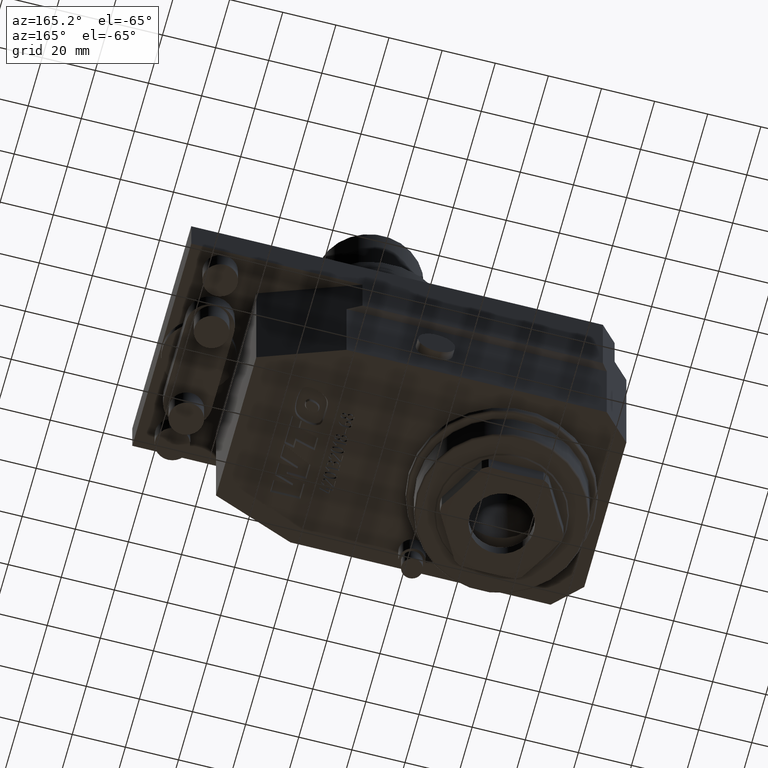
[diagram: clean part render]
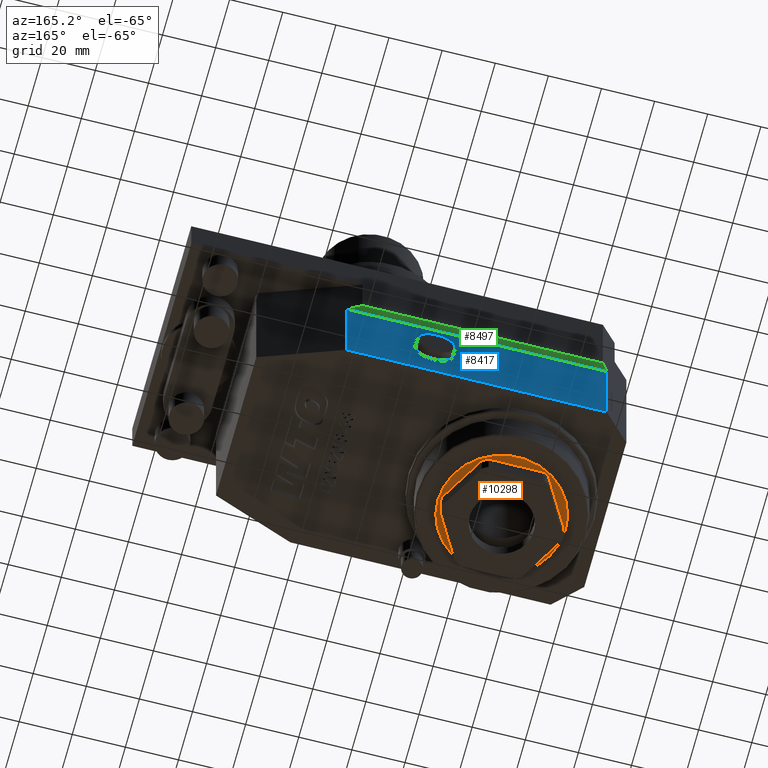
[diagram: same view with three faces highlighted in distinct colors, each labeled with its STEP entity id]
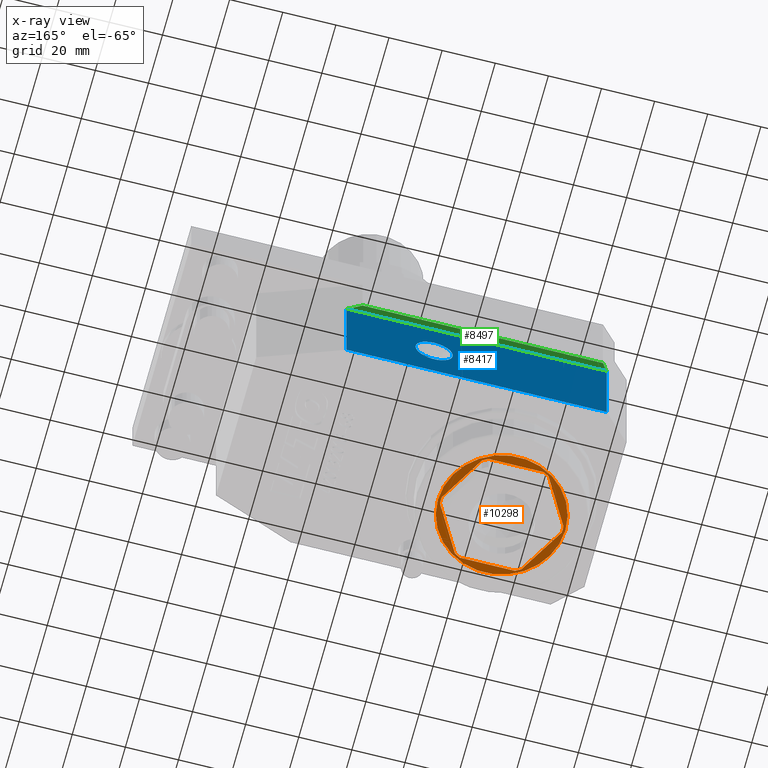
[diagram: x-ray of the same camera — body ghosted, the three highlighted faces saturated]
A machine part, auxiliary view with three faces highlighted in distinct colors.
The next image is the same camera in x-ray (body ghosted, the three faces saturated) — at least one of them is partly hidden behind the body in this view.
Their STEP definitions:

[orange] entity #10298 — the highlighted planar face has unit normal (0, 0, 1).
#5152 = VERTEX_POINT('',#5153);
#5153 = CARTESIAN_POINT('',(-27.06805000476,1.280697491627,-91.5));
#5162 = CYLINDRICAL_SURFACE('',#5163,22.967684181235);
#5163 = AXIS2_PLACEMENT_3D('',#5164,#5165,#5166);
#5164 = CARTESIAN_POINT('',(-50.,0.E+000,-70.));
#5165 = DIRECTION('',(0.E+000,0.E+000,-1.));
#5166 = DIRECTION('',(-1.,0.E+000,0.E+000));
#5173 = PLANE('',#5174);
#5174 = AXIS2_PLACEMENT_3D('',#5175,#5176,#5177);
#5175 = CARTESIAN_POINT('',(-27.03231581876,1.218804065906,-91.5));
#5176 = DIRECTION('',(0.866025403784,0.5,0.E+000));
#5177 = DIRECTION('',(-0.5,0.866025403784,0.E+000));
#5185 = EDGE_CURVE('',#5152,#5186,#5188,.T.);
#5186 = VERTEX_POINT('',#5187);
#5187 = CARTESIAN_POINT('',(-27.06805000476,-1.280697491627,-91.5));
#5188 = SURFACE_CURVE('',#5189,(#5194,#5200),.PCURVE_S1.);
#5189 = CIRCLE('',#5190,22.967684181235);
#5190 = AXIS2_PLACEMENT_3D('',#5191,#5192,#5193);
#5191 = CARTESIAN_POINT('',(-50.,0.E+000,-91.5));
#5192 = DIRECTION('',(0.E+000,0.E+000,-1.));
#5193 = DIRECTION('',(-1.,0.E+000,0.E+000));
#5194 = PCURVE('',#5162,#5195);
#5195 = DEFINITIONAL_REPRESENTATION('',(#5196),#5199);
#5196 = B_SPLINE_CURVE_WITH_KNOTS('',1,(#5197,#5198),.UNSPECIFIED.,.F.,
  .F.,(2,2),(3.085802871537,3.197382435643),.PIECEWISE_BEZIER_KNOTS.);
#5197 = CARTESIAN_POINT('',(3.085802871537,21.5));
#5198 = CARTESIAN_POINT('',(3.197382435643,21.5));
#5199 = ( GEOMETRIC_REPRESENTATION_CONTEXT(2) 
PARAMETRIC_REPRESENTATION_CONTEXT() REPRESENTATION_CONTEXT('2D SPACE',''
  ) );
#5200 = PCURVE('',#5201,#5206);
#5201 = PLANE('',#5202);
#5202 = AXIS2_PLACEMENT_3D('',#5203,#5204,#5205);
#5203 = CARTESIAN_POINT('',(-74.,0.E+000,-91.5));
#5204 = DIRECTION('',(0.E+000,0.E+000,1.));
#5205 = DIRECTION('',(1.,0.E+000,-0.E+000));
#5206 = DEFINITIONAL_REPRESENTATION('',(#5207),#5215);
#5207 = ( BOUNDED_CURVE() B_SPLINE_CURVE(2,(#5208,#5209,#5210,#5211,
#5212,#5213,#5214),.UNSPECIFIED.,.F.,.F.) B_SPLINE_CURVE_WITH_KNOTS((1,2
    ,2,2,2,1),(-2.094395102393,0.E+000,2.094395102393,4.188790204786,
6.28318530718,8.377580409573),.UNSPECIFIED.) CURVE() 
GEOMETRIC_REPRESENTATION_ITEM() RATIONAL_B_SPLINE_CURVE((1.,0.5,1.,0.5,
1.,0.5,1.)) REPRESENTATION_ITEM('') );
#5208 = CARTESIAN_POINT('',(1.032315818765,0.E+000));
#5209 = CARTESIAN_POINT('',(1.032315818765,39.781195934094));
#5210 = CARTESIAN_POINT('',(35.483842090617,19.890597967047));
#5211 = CARTESIAN_POINT('',(69.935368362469,5.625460183275E-015));
#5212 = CARTESIAN_POINT('',(35.483842090617,-19.89059796704));
#5213 = CARTESIAN_POINT('',(1.032315818765,-39.78119593409));
#5214 = CARTESIAN_POINT('',(1.032315818765,0.E+000));
#5215 = ( GEOMETRIC_REPRESENTATION_CONTEXT(2) 
PARAMETRIC_REPRESENTATION_CONTEXT() REPRESENTATION_CONTEXT('2D SPACE',''
  ) );
#5232 = PLANE('',#5233);
#5233 = AXIS2_PLACEMENT_3D('',#5234,#5235,#5236);
#5234 = CARTESIAN_POINT('',(-37.46064262607,-19.28119593409,-91.5));
#5235 = DIRECTION('',(0.866025403784,-0.5,0.E+000));
#5236 = DIRECTION('',(0.5,0.866025403784,0.E+000));
#5296 = VERTEX_POINT('',#5297);
#5297 = CARTESIAN_POINT('',(-37.42490844007,19.219302508373,-91.5));
#5306 = CYLINDRICAL_SURFACE('',#5307,22.967684181235);
#5307 = AXIS2_PLACEMENT_3D('',#5308,#5309,#5310);
#5308 = CARTESIAN_POINT('',(-50.,0.E+000,-70.));
#5309 = DIRECTION('',(0.E+000,0.E+000,-1.));
#5310 = DIRECTION('',(-1.,0.E+000,0.E+000));
#5370 = VERTEX_POINT('',#5371);
#5371 = CARTESIAN_POINT('',(-39.64314156469,20.5,-91.5));
#5384 = PLANE('',#5385);
#5385 = AXIS2_PLACEMENT_3D('',#5386,#5387,#5388);
#5386 = CARTESIAN_POINT('',(-39.57167319269,20.5,-91.5));
#5387 = DIRECTION('',(3.326944979824E-016,1.,0.E+000));
#5388 = DIRECTION('',(-1.,3.326944979824E-016,0.E+000));
#5396 = EDGE_CURVE('',#5370,#5296,#5397,.T.);
#5397 = SURFACE_CURVE('',#5398,(#5403,#5409),.PCURVE_S1.);
#5398 = CIRCLE('',#5399,22.967684181235);
#5399 = AXIS2_PLACEMENT_3D('',#5400,#5401,#5402);
#5400 = CARTESIAN_POINT('',(-50.,0.E+000,-91.5));
#5401 = DIRECTION('',(0.E+000,0.E+000,-1.));
#5402 = DIRECTION('',(-1.,0.E+000,0.E+000));
#5403 = PCURVE('',#5306,#5404);
#5404 = DEFINITIONAL_REPRESENTATION('',(#5405),#5408);
#5405 = B_SPLINE_CURVE_WITH_KNOTS('',1,(#5406,#5407),.UNSPECIFIED.,.F.,
  .F.,(2,2),(2.03860532034,2.150184884446),.PIECEWISE_BEZIER_KNOTS.);
#5406 = CARTESIAN_POINT('',(2.03860532034,21.5));
#5407 = CARTESIAN_POINT('',(2.150184884446,21.5));
#5408 = ( GEOMETRIC_REPRESENTATION_CONTEXT(2) 
PARAMETRIC_REPRESENTATION_CONTEXT() REPRESENTATION_CONTEXT('2D SPACE',''
  ) );
#5409 = PCURVE('',#5201,#5410);
#5410 = DEFINITIONAL_REPRESENTATION('',(#5411),#5419);
#5411 = ( BOUNDED_CURVE() B_SPLINE_CURVE(2,(#5412,#5413,#5414,#5415,
#5416,#5417,#5418),.UNSPECIFIED.,.F.,.F.) B_SPLINE_CURVE_WITH_KNOTS((1,2
    ,2,2,2,1),(-2.094395102393,0.E+000,2.094395102393,4.188790204786,
6.28318530718,8.377580409573),.UNSPECIFIED.) CURVE() 
GEOMETRIC_REPRESENTATION_ITEM() RATIONAL_B_SPLINE_CURVE((1.,0.5,1.,0.5,
1.,0.5,1.)) REPRESENTATION_ITEM('') );
#5412 = CARTESIAN_POINT('',(1.032315818765,0.E+000));
#5413 = CARTESIAN_POINT('',(1.032315818765,39.781195934094));
#5414 = CARTESIAN_POINT('',(35.483842090617,19.890597967047));
#5415 = CARTESIAN_POINT('',(69.935368362469,5.625460183275E-015));
#5416 = CARTESIAN_POINT('',(35.483842090617,-19.89059796704));
#5417 = CARTESIAN_POINT('',(1.032315818765,-39.78119593409));
#5418 = CARTESIAN_POINT('',(1.032315818765,0.E+000));
#5419 = ( GEOMETRIC_REPRESENTATION_CONTEXT(2) 
PARAMETRIC_REPRESENTATION_CONTEXT() REPRESENTATION_CONTEXT('2D SPACE',''
  ) );
#5425 = VERTEX_POINT('',#5426);
#5426 = CARTESIAN_POINT('',(-60.3568584353,20.5,-91.5));
#5435 = CYLINDRICAL_SURFACE('',#5436,22.967684181235);
#5436 = AXIS2_PLACEMENT_3D('',#5437,#5438,#5439);
#5437 = CARTESIAN_POINT('',(-50.,0.E+000,-70.));
#5438 = DIRECTION('',(0.E+000,0.E+000,-1.));
#5439 = DIRECTION('',(-1.,0.E+000,0.E+000));
#5499 = VERTEX_POINT('',#5500);
#5500 = CARTESIAN_POINT('',(-62.57509155992,19.219302508373,-91.5));
#5513 = PLANE('',#5514);
#5514 = AXIS2_PLACEMENT_3D('',#5515,#5516,#5517);
#5515 = CARTESIAN_POINT('',(-62.53935737392,19.281195934094,-91.5));
#5516 = DIRECTION('',(-0.866025403784,0.5,0.E+000));
#5517 = DIRECTION('',(-0.5,-0.866025403784,0.E+000));
#5525 = EDGE_CURVE('',#5499,#5425,#5526,.T.);
#5526 = SURFACE_CURVE('',#5527,(#5532,#5538),.PCURVE_S1.);
#5527 = CIRCLE('',#5528,22.967684181235);
#5528 = AXIS2_PLACEMENT_3D('',#5529,#5530,#5531);
#5529 = CARTESIAN_POINT('',(-50.,0.E+000,-91.5));
#5530 = DIRECTION('',(0.E+000,0.E+000,-1.));
#5531 = DIRECTION('',(-1.,0.E+000,0.E+000));
#5532 = PCURVE('',#5435,#5533);
#5533 = DEFINITIONAL_REPRESENTATION('',(#5534),#5537);
#5534 = B_SPLINE_CURVE_WITH_KNOTS('',1,(#5535,#5536),.UNSPECIFIED.,.F.,
  .F.,(2,2),(0.991407769144,1.102987333249),.PIECEWISE_BEZIER_KNOTS.);
#5535 = CARTESIAN_POINT('',(0.991407769144,21.5));
#5536 = CARTESIAN_POINT('',(1.102987333249,21.5));
#5537 = ( GEOMETRIC_REPRESENTATION_CONTEXT(2) 
PARAMETRIC_REPRESENTATION_CONTEXT() REPRESENTATION_CONTEXT('2D SPACE',''
  ) );
#5538 = PCURVE('',#5201,#5539);
#5539 = DEFINITIONAL_REPRESENTATION('',(#5540),#5548);
#5540 = ( BOUNDED_CURVE() B_SPLINE_CURVE(2,(#5541,#5542,#5543,#5544,
#5545,#5546,#5547),.UNSPECIFIED.,.F.,.F.) B_SPLINE_CURVE_WITH_KNOTS((1,2
    ,2,2,2,1),(-2.094395102393,0.E+000,2.094395102393,4.188790204786,
6.28318530718,8.377580409573),.UNSPECIFIED.) CURVE() 
GEOMETRIC_REPRESENTATION_ITEM() RATIONAL_B_SPLINE_CURVE((1.,0.5,1.,0.5,
1.,0.5,1.)) REPRESENTATION_ITEM('') );
#5541 = CARTESIAN_POINT('',(1.032315818765,0.E+000));
#5542 = CARTESIAN_POINT('',(1.032315818765,39.781195934094));
#5543 = CARTESIAN_POINT('',(35.483842090617,19.890597967047));
#5544 = CARTESIAN_POINT('',(69.935368362469,5.625460183275E-015));
#5545 = CARTESIAN_POINT('',(35.483842090617,-19.89059796704));
#5546 = CARTESIAN_POINT('',(1.032315818765,-39.78119593409));
#5547 = CARTESIAN_POINT('',(1.032315818765,0.E+000));
#5548 = ( GEOMETRIC_REPRESENTATION_CONTEXT(2) 
PARAMETRIC_REPRESENTATION_CONTEXT() REPRESENTATION_CONTEXT('2D SPACE',''
  ) );
#5554 = VERTEX_POINT('',#5555);
#5555 = CARTESIAN_POINT('',(-72.93194999523,1.280697491627,-91.5));
#5564 = CYLINDRICAL_SURFACE('',#5565,22.967684181235);
#5565 = AXIS2_PLACEMENT_3D('',#5566,#5567,#5568);
#5566 = CARTESIAN_POINT('',(-50.,0.E+000,-70.));
#5567 = DIRECTION('',(0.E+000,0.E+000,-1.));
#5568 = DIRECTION('',(-1.,0.E+000,0.E+000));
#5628 = VERTEX_POINT('',#5629);
#5629 = CARTESIAN_POINT('',(-72.93194999523,-1.280697491627,-91.5));
#5642 = PLANE('',#5643);
#5643 = AXIS2_PLACEMENT_3D('',#5644,#5645,#5646);
#5644 = CARTESIAN_POINT('',(-72.96768418123,-1.218804065906,-91.5));
#5645 = DIRECTION('',(-0.866025403784,-0.5,0.E+000));
#5646 = DIRECTION('',(0.5,-0.866025403784,0.E+000));
#5654 = EDGE_CURVE('',#5628,#5554,#5655,.T.);
#5655 = SURFACE_CURVE('',#5656,(#5661,#5667),.PCURVE_S1.);
#5656 = CIRCLE('',#5657,22.967684181235);
#5657 = AXIS2_PLACEMENT_3D('',#5658,#5659,#5660);
#5658 = CARTESIAN_POINT('',(-50.,0.E+000,-91.5));
#5659 = DIRECTION('',(0.E+000,0.E+000,-1.));
#5660 = DIRECTION('',(-1.,0.E+000,0.E+000));
#5661 = PCURVE('',#5564,#5662);
#5662 = DEFINITIONAL_REPRESENTATION('',(#5663),#5666);
#5663 = B_SPLINE_CURVE_WITH_KNOTS('',1,(#5664,#5665),.UNSPECIFIED.,.F.,
  .F.,(2,2),(6.227395525127,6.338975089232),.PIECEWISE_BEZIER_KNOTS.);
#5664 = CARTESIAN_POINT('',(6.227395525127,21.5));
#5665 = CARTESIAN_POINT('',(6.338975089232,21.5));
#5666 = ( GEOMETRIC_REPRESENTATION_CONTEXT(2) 
PARAMETRIC_REPRESENTATION_CONTEXT() REPRESENTATION_CONTEXT('2D SPACE',''
  ) );
#5667 = PCURVE('',#5201,#5668);
#5668 = DEFINITIONAL_REPRESENTATION('',(#5669),#5677);
#5669 = ( BOUNDED_CURVE() B_SPLINE_CURVE(2,(#5670,#5671,#5672,#5673,
#5674,#5675,#5676),.UNSPECIFIED.,.F.,.F.) B_SPLINE_CURVE_WITH_KNOTS((1,2
    ,2,2,2,1),(-2.094395102393,0.E+000,2.094395102393,4.188790204786,
6.28318530718,8.377580409573),.UNSPECIFIED.) CURVE() 
GEOMETRIC_REPRESENTATION_ITEM() RATIONAL_B_SPLINE_CURVE((1.,0.5,1.,0.5,
1.,0.5,1.)) REPRESENTATION_ITEM('') );
#5670 = CARTESIAN_POINT('',(1.032315818765,0.E+000));
#5671 = CARTESIAN_POINT('',(1.032315818765,39.781195934094));
#5672 = CARTESIAN_POINT('',(35.483842090617,19.890597967047));
#5673 = CARTESIAN_POINT('',(69.935368362469,5.625460183275E-015));
#5674 = CARTESIAN_POINT('',(35.483842090617,-19.89059796704));
#5675 = CARTESIAN_POINT('',(1.032315818765,-39.78119593409));
#5676 = CARTESIAN_POINT('',(1.032315818765,0.E+000));
#5677 = ( GEOMETRIC_REPRESENTATION_CONTEXT(2) 
PARAMETRIC_REPRESENTATION_CONTEXT() REPRESENTATION_CONTEXT('2D SPACE',''
  ) );
#5683 = VERTEX_POINT('',#5684);
#5684 = CARTESIAN_POINT('',(-62.57509155992,-19.21930250837,-91.5));
#5693 = CYLINDRICAL_SURFACE('',#5694,22.967684181235);
#5694 = AXIS2_PLACEMENT_3D('',#5695,#5696,#5697);
#5695 = CARTESIAN_POINT('',(-50.,0.E+000,-70.));
#5696 = DIRECTION('',(0.E+000,0.E+000,-1.));
#5697 = DIRECTION('',(-1.,0.E+000,0.E+000));
#5757 = VERTEX_POINT('',#5758);
#5758 = CARTESIAN_POINT('',(-60.3568584353,-20.5,-91.5));
#5771 = PLANE('',#5772);
#5772 = AXIS2_PLACEMENT_3D('',#5773,#5774,#5775);
#5773 = CARTESIAN_POINT('',(-60.4283268073,-20.5,-91.5));
#5774 = DIRECTION('',(0.E+000,-1.,0.E+000));
#5775 = DIRECTION('',(0.E+000,0.E+000,-1.));
#5783 = EDGE_CURVE('',#5757,#5683,#5784,.T.);
#5784 = SURFACE_CURVE('',#5785,(#5790,#5796),.PCURVE_S1.);
#5785 = CIRCLE('',#5786,22.967684181235);
#5786 = AXIS2_PLACEMENT_3D('',#5787,#5788,#5789);
#5787 = CARTESIAN_POINT('',(-50.,0.E+000,-91.5));
#5788 = DIRECTION('',(0.E+000,0.E+000,-1.));
#5789 = DIRECTION('',(-1.,0.E+000,0.E+000));
#5790 = PCURVE('',#5693,#5791);
#5791 = DEFINITIONAL_REPRESENTATION('',(#5792),#5795);
#5792 = B_SPLINE_CURVE_WITH_KNOTS('',1,(#5793,#5794),.UNSPECIFIED.,.F.,
  .F.,(2,2),(5.18019797393,5.291777538036),.PIECEWISE_BEZIER_KNOTS.);
#5793 = CARTESIAN_POINT('',(5.18019797393,21.5));
#5794 = CARTESIAN_POINT('',(5.291777538036,21.5));
#5795 = ( GEOMETRIC_REPRESENTATION_CONTEXT(2) 
PARAMETRIC_REPRESENTATION_CONTEXT() REPRESENTATION_CONTEXT('2D SPACE',''
  ) );
#5796 = PCURVE('',#5201,#5797);
#5797 = DEFINITIONAL_REPRESENTATION('',(#5798),#5806);
#5798 = ( BOUNDED_CURVE() B_SPLINE_CURVE(2,(#5799,#5800,#5801,#5802,
#5803,#5804,#5805),.UNSPECIFIED.,.F.,.F.) B_SPLINE_CURVE_WITH_KNOTS((1,2
    ,2,2,2,1),(-2.094395102393,0.E+000,2.094395102393,4.188790204786,
6.28318530718,8.377580409573),.UNSPECIFIED.) CURVE() 
GEOMETRIC_REPRESENTATION_ITEM() RATIONAL_B_SPLINE_CURVE((1.,0.5,1.,0.5,
1.,0.5,1.)) REPRESENTATION_ITEM('') );
#5799 = CARTESIAN_POINT('',(1.032315818765,0.E+000));
#5800 = CARTESIAN_POINT('',(1.032315818765,39.781195934094));
#5801 = CARTESIAN_POINT('',(35.483842090617,19.890597967047));
#5802 = CARTESIAN_POINT('',(69.935368362469,5.625460183275E-015));
#5803 = CARTESIAN_POINT('',(35.483842090617,-19.89059796704));
#5804 = CARTESIAN_POINT('',(1.032315818765,-39.78119593409));
#5805 = CARTESIAN_POINT('',(1.032315818765,0.E+000));
#5806 = ( GEOMETRIC_REPRESENTATION_CONTEXT(2) 
PARAMETRIC_REPRESENTATION_CONTEXT() REPRESENTATION_CONTEXT('2D SPACE',''
  ) );
#5812 = VERTEX_POINT('',#5813);
#5813 = CARTESIAN_POINT('',(-39.64314156469,-20.5,-91.5));
#5822 = CYLINDRICAL_SURFACE('',#5823,22.967684181235);
#5823 = AXIS2_PLACEMENT_3D('',#5824,#5825,#5826);
#5824 = CARTESIAN_POINT('',(-50.,0.E+000,-70.));
#5825 = DIRECTION('',(0.E+000,0.E+000,-1.));
#5826 = DIRECTION('',(-1.,0.E+000,0.E+000));
#5886 = VERTEX_POINT('',#5887);
#5887 = CARTESIAN_POINT('',(-37.42490844007,-19.21930250837,-91.5));
#5907 = EDGE_CURVE('',#5886,#5812,#5908,.T.);
#5908 = SURFACE_CURVE('',#5909,(#5914,#5920),.PCURVE_S1.);
#5909 = CIRCLE('',#5910,22.967684181235);
#5910 = AXIS2_PLACEMENT_3D('',#5911,#5912,#5913);
#5911 = CARTESIAN_POINT('',(-50.,0.E+000,-91.5));
#5912 = DIRECTION('',(0.E+000,0.E+000,-1.));
#5913 = DIRECTION('',(-1.,0.E+000,0.E+000));
#5914 = PCURVE('',#5822,#5915);
#5915 = DEFINITIONAL_REPRESENTATION('',(#5916),#5919);
#5916 = B_SPLINE_CURVE_WITH_KNOTS('',1,(#5917,#5918),.UNSPECIFIED.,.F.,
  .F.,(2,2),(4.133000422734,4.244579986839),.PIECEWISE_BEZIER_KNOTS.);
#5917 = CARTESIAN_POINT('',(4.133000422734,21.5));
#5918 = CARTESIAN_POINT('',(4.244579986839,21.5));
#5919 = ( GEOMETRIC_REPRESENTATION_CONTEXT(2) 
PARAMETRIC_REPRESENTATION_CONTEXT() REPRESENTATION_CONTEXT('2D SPACE',''
  ) );
#5920 = PCURVE('',#5201,#5921);
#5921 = DEFINITIONAL_REPRESENTATION('',(#5922),#5930);
#5922 = ( BOUNDED_CURVE() B_SPLINE_CURVE(2,(#5923,#5924,#5925,#5926,
#5927,#5928,#5929),.UNSPECIFIED.,.F.,.F.) B_SPLINE_CURVE_WITH_KNOTS((1,2
    ,2,2,2,1),(-2.094395102393,0.E+000,2.094395102393,4.188790204786,
6.28318530718,8.377580409573),.UNSPECIFIED.) CURVE() 
GEOMETRIC_REPRESENTATION_ITEM() RATIONAL_B_SPLINE_CURVE((1.,0.5,1.,0.5,
1.,0.5,1.)) REPRESENTATION_ITEM('') );
#5923 = CARTESIAN_POINT('',(1.032315818765,0.E+000));
#5924 = CARTESIAN_POINT('',(1.032315818765,39.781195934094));
#5925 = CARTESIAN_POINT('',(35.483842090617,19.890597967047));
#5926 = CARTESIAN_POINT('',(69.935368362469,5.625460183275E-015));
#5927 = CARTESIAN_POINT('',(35.483842090617,-19.89059796704));
#5928 = CARTESIAN_POINT('',(1.032315818765,-39.78119593409));
#5929 = CARTESIAN_POINT('',(1.032315818765,0.E+000));
#5930 = ( GEOMETRIC_REPRESENTATION_CONTEXT(2) 
PARAMETRIC_REPRESENTATION_CONTEXT() REPRESENTATION_CONTEXT('2D SPACE',''
  ) );
#10187 = CONICAL_SURFACE('',#10188,24.5,0.785398163397);
#10188 = AXIS2_PLACEMENT_3D('',#10189,#10190,#10191);
#10189 = CARTESIAN_POINT('',(-50.,0.E+000,-91.));
#10190 = DIRECTION('',(0.E+000,0.E+000,1.));
#10191 = DIRECTION('',(1.,0.E+000,-0.E+000));
#10227 = EDGE_CURVE('',#10228,#10228,#10230,.T.);
#10228 = VERTEX_POINT('',#10229);
#10229 = CARTESIAN_POINT('',(-74.,0.E+000,-91.5));
#10230 = SURFACE_CURVE('',#10231,(#10236,#10265),.PCURVE_S1.);
#10231 = CIRCLE('',#10232,24.);
#10232 = AXIS2_PLACEMENT_3D('',#10233,#10234,#10235);
#10233 = CARTESIAN_POINT('',(-50.,0.E+000,-91.5));
#10234 = DIRECTION('',(0.E+000,0.E+000,-1.));
#10235 = DIRECTION('',(-1.,0.E+000,0.E+000));
#10236 = PCURVE('',#10187,#10237);
#10237 = DEFINITIONAL_REPRESENTATION('',(#10238),#10264);
#10238 = B_SPLINE_CURVE_WITH_KNOTS('',3,(#10239,#10240,#10241,#10242,
    #10243,#10244,#10245,#10246,#10247,#10248,#10249,#10250,#10251,
    #10252,#10253,#10254,#10255,#10256,#10257,#10258,#10259,#10260,
    #10261,#10262,#10263),.UNSPECIFIED.,.F.,.F.,(4,1,1,1,1,1,1,1,1,1,1,1
    ,1,1,1,1,1,1,1,1,1,1,4),(0.E+000,0.285599332145,0.571198664289,
    0.856797996434,1.142397328578,1.427996660723,1.713595992867,
    1.999195325012,2.284794657156,2.570393989301,2.855993321445,
    3.14159265359,3.427191985734,3.712791317879,3.998390650023,
    4.283989982168,4.569589314312,4.855188646457,5.140787978601,
    5.426387310746,5.711986642891,5.997585975035,6.28318530718),
  .QUASI_UNIFORM_KNOTS.);
#10239 = CARTESIAN_POINT('',(9.424777960769,-0.5));
#10240 = CARTESIAN_POINT('',(9.329578183388,-0.5));
#10241 = CARTESIAN_POINT('',(9.139178628625,-0.5));
#10242 = CARTESIAN_POINT('',(8.85357929648,-0.5));
#10243 = CARTESIAN_POINT('',(8.567979964336,-0.5));
#10244 = CARTESIAN_POINT('',(8.282380632191,-0.5));
#10245 = CARTESIAN_POINT('',(7.996781300047,-0.5));
#10246 = CARTESIAN_POINT('',(7.711181967902,-0.5));
#10247 = CARTESIAN_POINT('',(7.425582635758,-0.5));
#10248 = CARTESIAN_POINT('',(7.139983303613,-0.5));
#10249 = CARTESIAN_POINT('',(6.854383971469,-0.5));
#10250 = CARTESIAN_POINT('',(6.568784639324,-0.5));
#10251 = CARTESIAN_POINT('',(6.28318530718,-0.5));
#10252 = CARTESIAN_POINT('',(5.997585975035,-0.5));
#10253 = CARTESIAN_POINT('',(5.711986642891,-0.5));
#10254 = CARTESIAN_POINT('',(5.426387310746,-0.5));
#10255 = CARTESIAN_POINT('',(5.140787978601,-0.5));
#10256 = CARTESIAN_POINT('',(4.855188646457,-0.5));
#10257 = CARTESIAN_POINT('',(4.569589314312,-0.5));
#10258 = CARTESIAN_POINT('',(4.283989982168,-0.5));
#10259 = CARTESIAN_POINT('',(3.998390650023,-0.5));
#10260 = CARTESIAN_POINT('',(3.712791317879,-0.5));
#10261 = CARTESIAN_POINT('',(3.427191985734,-0.5));
#10262 = CARTESIAN_POINT('',(3.236792430971,-0.5));
#10263 = CARTESIAN_POINT('',(3.14159265359,-0.5));
#10264 = ( GEOMETRIC_REPRESENTATION_CONTEXT(2) 
PARAMETRIC_REPRESENTATION_CONTEXT() REPRESENTATION_CONTEXT('2D SPACE',''
  ) );
#10265 = PCURVE('',#5201,#10266);
#10266 = DEFINITIONAL_REPRESENTATION('',(#10267),#10275);
#10267 = ( BOUNDED_CURVE() B_SPLINE_CURVE(2,(#10268,#10269,#10270,#10271
    ,#10272,#10273,#10274),.UNSPECIFIED.,.F.,.F.) 
B_SPLINE_CURVE_WITH_KNOTS((1,2,2,2,2,1),(-2.094395102393,0.E+000,
    2.094395102393,4.188790204786,6.28318530718,8.377580409573),
.UNSPECIFIED.) CURVE() GEOMETRIC_REPRESENTATION_ITEM() 
RATIONAL_B_SPLINE_CURVE((1.,0.5,1.,0.5,1.,0.5,1.)) REPRESENTATION_ITEM(
  '') );
#10268 = CARTESIAN_POINT('',(0.E+000,0.E+000));
#10269 = CARTESIAN_POINT('',(0.E+000,41.569219381653));
#10270 = CARTESIAN_POINT('',(36.,20.784609690827));
#10271 = CARTESIAN_POINT('',(72.,5.878304635907E-015));
#10272 = CARTESIAN_POINT('',(36.,-20.78460969082));
#10273 = CARTESIAN_POINT('',(3.552713678801E-014,-41.56921938165));
#10274 = CARTESIAN_POINT('',(0.E+000,0.E+000));
#10275 = ( GEOMETRIC_REPRESENTATION_CONTEXT(2) 
PARAMETRIC_REPRESENTATION_CONTEXT() REPRESENTATION_CONTEXT('2D SPACE',''
  ) );
#10298 = ADVANCED_FACE('',(#10299,#10433),#5201,.F.);
#10299 = FACE_BOUND('',#10300,.T.);
#10300 = EDGE_LOOP('',(#10301,#10302,#10323,#10324,#10345,#10346,#10367,
    #10368,#10389,#10390,#10411,#10412));
#10301 = ORIENTED_EDGE('',*,*,#5185,.F.);
#10302 = ORIENTED_EDGE('',*,*,#10303,.F.);
#10303 = EDGE_CURVE('',#5296,#5152,#10304,.T.);
#10304 = SURFACE_CURVE('',#10305,(#10309,#10316),.PCURVE_S1.);
#10305 = LINE('',#10306,#10307);
#10306 = CARTESIAN_POINT('',(-27.03231581876,1.218804065906,-91.5));
#10307 = VECTOR('',#10308,1.);
#10308 = DIRECTION('',(0.5,-0.866025403784,0.E+000));
#10309 = PCURVE('',#5201,#10310);
#10310 = DEFINITIONAL_REPRESENTATION('',(#10311),#10315);
#10311 = LINE('',#10312,#10313);
#10312 = CARTESIAN_POINT('',(46.967684181235,1.218804065906));
#10313 = VECTOR('',#10314,1.);
#10314 = DIRECTION('',(0.5,-0.866025403784));
#10315 = ( GEOMETRIC_REPRESENTATION_CONTEXT(2) 
PARAMETRIC_REPRESENTATION_CONTEXT() REPRESENTATION_CONTEXT('2D SPACE',''
  ) );
#10316 = PCURVE('',#5173,#10317);
#10317 = DEFINITIONAL_REPRESENTATION('',(#10318),#10322);
#10318 = LINE('',#10319,#10320);
#10319 = CARTESIAN_POINT('',(0.E+000,0.E+000));
#10320 = VECTOR('',#10321,1.);
#10321 = DIRECTION('',(-1.,0.E+000));
#10322 = ( GEOMETRIC_REPRESENTATION_CONTEXT(2) 
PARAMETRIC_REPRESENTATION_CONTEXT() REPRESENTATION_CONTEXT('2D SPACE',''
  ) );
#10323 = ORIENTED_EDGE('',*,*,#5396,.F.);
#10324 = ORIENTED_EDGE('',*,*,#10325,.F.);
#10325 = EDGE_CURVE('',#5425,#5370,#10326,.T.);
#10326 = SURFACE_CURVE('',#10327,(#10331,#10338),.PCURVE_S1.);
#10327 = LINE('',#10328,#10329);
#10328 = CARTESIAN_POINT('',(-39.57167319269,20.5,-91.5));
#10329 = VECTOR('',#10330,1.);
#10330 = DIRECTION('',(1.,-3.326944979824E-016,0.E+000));
#10331 = PCURVE('',#5201,#10332);
#10332 = DEFINITIONAL_REPRESENTATION('',(#10333),#10337);
#10333 = LINE('',#10334,#10335);
#10334 = CARTESIAN_POINT('',(34.428326807307,20.5));
#10335 = VECTOR('',#10336,1.);
#10336 = DIRECTION('',(1.,-3.326944979824E-016));
#10337 = ( GEOMETRIC_REPRESENTATION_CONTEXT(2) 
PARAMETRIC_REPRESENTATION_CONTEXT() REPRESENTATION_CONTEXT('2D SPACE',''
  ) );
#10338 = PCURVE('',#5384,#10339);
#10339 = DEFINITIONAL_REPRESENTATION('',(#10340),#10344);
#10340 = LINE('',#10341,#10342);
#10341 = CARTESIAN_POINT('',(0.E+000,0.E+000));
#10342 = VECTOR('',#10343,1.);
#10343 = DIRECTION('',(-1.,0.E+000));
#10344 = ( GEOMETRIC_REPRESENTATION_CONTEXT(2) 
PARAMETRIC_REPRESENTATION_CONTEXT() REPRESENTATION_CONTEXT('2D SPACE',''
  ) );
#10345 = ORIENTED_EDGE('',*,*,#5525,.F.);
#10346 = ORIENTED_EDGE('',*,*,#10347,.F.);
#10347 = EDGE_CURVE('',#5554,#5499,#10348,.T.);
#10348 = SURFACE_CURVE('',#10349,(#10353,#10360),.PCURVE_S1.);
#10349 = LINE('',#10350,#10351);
#10350 = CARTESIAN_POINT('',(-62.53935737392,19.281195934094,-91.5));
#10351 = VECTOR('',#10352,1.);
#10352 = DIRECTION('',(0.5,0.866025403784,0.E+000));
#10353 = PCURVE('',#5201,#10354);
#10354 = DEFINITIONAL_REPRESENTATION('',(#10355),#10359);
#10355 = LINE('',#10356,#10357);
#10356 = CARTESIAN_POINT('',(11.460642626072,19.281195934094));
#10357 = VECTOR('',#10358,1.);
#10358 = DIRECTION('',(0.5,0.866025403784));
#10359 = ( GEOMETRIC_REPRESENTATION_CONTEXT(2) 
PARAMETRIC_REPRESENTATION_CONTEXT() REPRESENTATION_CONTEXT('2D SPACE',''
  ) );
#10360 = PCURVE('',#5513,#10361);
#10361 = DEFINITIONAL_REPRESENTATION('',(#10362),#10366);
#10362 = LINE('',#10363,#10364);
#10363 = CARTESIAN_POINT('',(0.E+000,0.E+000));
#10364 = VECTOR('',#10365,1.);
#10365 = DIRECTION('',(-1.,0.E+000));
#10366 = ( GEOMETRIC_REPRESENTATION_CONTEXT(2) 
PARAMETRIC_REPRESENTATION_CONTEXT() REPRESENTATION_CONTEXT('2D SPACE',''
  ) );
#10367 = ORIENTED_EDGE('',*,*,#5654,.F.);
#10368 = ORIENTED_EDGE('',*,*,#10369,.F.);
#10369 = EDGE_CURVE('',#5683,#5628,#10370,.T.);
#10370 = SURFACE_CURVE('',#10371,(#10375,#10382),.PCURVE_S1.);
#10371 = LINE('',#10372,#10373);
#10372 = CARTESIAN_POINT('',(-72.96768418123,-1.218804065906,-91.5));
#10373 = VECTOR('',#10374,1.);
#10374 = DIRECTION('',(-0.5,0.866025403784,0.E+000));
#10375 = PCURVE('',#5201,#10376);
#10376 = DEFINITIONAL_REPRESENTATION('',(#10377),#10381);
#10377 = LINE('',#10378,#10379);
#10378 = CARTESIAN_POINT('',(1.032315818765,-1.218804065906));
#10379 = VECTOR('',#10380,1.);
#10380 = DIRECTION('',(-0.5,0.866025403784));
#10381 = ( GEOMETRIC_REPRESENTATION_CONTEXT(2) 
PARAMETRIC_REPRESENTATION_CONTEXT() REPRESENTATION_CONTEXT('2D SPACE',''
  ) );
#10382 = PCURVE('',#5642,#10383);
#10383 = DEFINITIONAL_REPRESENTATION('',(#10384),#10388);
#10384 = LINE('',#10385,#10386);
#10385 = CARTESIAN_POINT('',(0.E+000,0.E+000));
#10386 = VECTOR('',#10387,1.);
#10387 = DIRECTION('',(-1.,0.E+000));
#10388 = ( GEOMETRIC_REPRESENTATION_CONTEXT(2) 
PARAMETRIC_REPRESENTATION_CONTEXT() REPRESENTATION_CONTEXT('2D SPACE',''
  ) );
#10389 = ORIENTED_EDGE('',*,*,#5783,.F.);
#10390 = ORIENTED_EDGE('',*,*,#10391,.F.);
#10391 = EDGE_CURVE('',#5812,#5757,#10392,.T.);
#10392 = SURFACE_CURVE('',#10393,(#10397,#10404),.PCURVE_S1.);
#10393 = LINE('',#10394,#10395);
#10394 = CARTESIAN_POINT('',(-60.4283268073,-20.5,-91.5));
#10395 = VECTOR('',#10396,1.);
#10396 = DIRECTION('',(-1.,0.E+000,0.E+000));
#10397 = PCURVE('',#5201,#10398);
#10398 = DEFINITIONAL_REPRESENTATION('',(#10399),#10403);
#10399 = LINE('',#10400,#10401);
#10400 = CARTESIAN_POINT('',(13.571673192693,-20.5));
#10401 = VECTOR('',#10402,1.);
#10402 = DIRECTION('',(-1.,0.E+000));
#10403 = ( GEOMETRIC_REPRESENTATION_CONTEXT(2) 
PARAMETRIC_REPRESENTATION_CONTEXT() REPRESENTATION_CONTEXT('2D SPACE',''
  ) );
#10404 = PCURVE('',#5771,#10405);
#10405 = DEFINITIONAL_REPRESENTATION('',(#10406),#10410);
#10406 = LINE('',#10407,#10408);
#10407 = CARTESIAN_POINT('',(0.E+000,0.E+000));
#10408 = VECTOR('',#10409,1.);
#10409 = DIRECTION('',(0.E+000,-1.));
#10410 = ( GEOMETRIC_REPRESENTATION_CONTEXT(2) 
PARAMETRIC_REPRESENTATION_CONTEXT() REPRESENTATION_CONTEXT('2D SPACE',''
  ) );
#10411 = ORIENTED_EDGE('',*,*,#5907,.F.);
#10412 = ORIENTED_EDGE('',*,*,#10413,.F.);
#10413 = EDGE_CURVE('',#5186,#5886,#10414,.T.);
#10414 = SURFACE_CURVE('',#10415,(#10419,#10426),.PCURVE_S1.);
#10415 = LINE('',#10416,#10417);
#10416 = CARTESIAN_POINT('',(-37.46064262607,-19.28119593409,-91.5));
#10417 = VECTOR('',#10418,1.);
#10418 = DIRECTION('',(-0.5,-0.866025403784,0.E+000));
#10419 = PCURVE('',#5201,#10420);
#10420 = DEFINITIONAL_REPRESENTATION('',(#10421),#10425);
#10421 = LINE('',#10422,#10423);
#10422 = CARTESIAN_POINT('',(36.539357373928,-19.28119593409));
#10423 = VECTOR('',#10424,1.);
#10424 = DIRECTION('',(-0.5,-0.866025403784));
#10425 = ( GEOMETRIC_REPRESENTATION_CONTEXT(2) 
PARAMETRIC_REPRESENTATION_CONTEXT() REPRESENTATION_CONTEXT('2D SPACE',''
  ) );
#10426 = PCURVE('',#5232,#10427);
#10427 = DEFINITIONAL_REPRESENTATION('',(#10428),#10432);
#10428 = LINE('',#10429,#10430);
#10429 = CARTESIAN_POINT('',(0.E+000,0.E+000));
#10430 = VECTOR('',#10431,1.);
#10431 = DIRECTION('',(-1.,0.E+000));
#10432 = ( GEOMETRIC_REPRESENTATION_CONTEXT(2) 
PARAMETRIC_REPRESENTATION_CONTEXT() REPRESENTATION_CONTEXT('2D SPACE',''
  ) );
#10433 = FACE_BOUND('',#10434,.T.);
#10434 = EDGE_LOOP('',(#10435));
#10435 = ORIENTED_EDGE('',*,*,#10227,.T.);

[blue] entity #8417 — the highlighted planar face has unit normal (0, 1, 0).
#53 = PLANE('',#54);
#54 = AXIS2_PLACEMENT_3D('',#55,#56,#57);
#55 = CARTESIAN_POINT('',(50.,-42.,-70.));
#56 = DIRECTION('',(0.E+000,0.E+000,-1.));
#57 = DIRECTION('',(-1.,0.E+000,0.E+000));
#2381 = VERTEX_POINT('',#2382);
#2382 = CARTESIAN_POINT('',(-79.,40.,-70.));
#2396 = PLANE('',#2397);
#2397 = AXIS2_PLACEMENT_3D('',#2398,#2399,#2400);
#2398 = CARTESIAN_POINT('',(-89.,30.,-246.0589360295));
#2399 = DIRECTION('',(-0.707106781187,0.707106781187,0.E+000));
#2400 = DIRECTION('',(-0.707106781187,-0.707106781187,0.E+000));
#2408 = EDGE_CURVE('',#2409,#2381,#2411,.T.);
#2409 = VERTEX_POINT('',#2410);
#2410 = CARTESIAN_POINT('',(18.994954838909,40.,-70.));
#2411 = SURFACE_CURVE('',#2412,(#2416,#2423),.PCURVE_S1.);
#2412 = LINE('',#2413,#2414);
#2413 = CARTESIAN_POINT('',(246.05893602956,40.,-70.));
#2414 = VECTOR('',#2415,1.);
#2415 = DIRECTION('',(-1.,0.E+000,0.E+000));
#2416 = PCURVE('',#53,#2417);
#2417 = DEFINITIONAL_REPRESENTATION('',(#2418),#2422);
#2418 = LINE('',#2419,#2420);
#2419 = CARTESIAN_POINT('',(-196.0589360295,82.));
#2420 = VECTOR('',#2421,1.);
#2421 = DIRECTION('',(1.,0.E+000));
#2422 = ( GEOMETRIC_REPRESENTATION_CONTEXT(2) 
PARAMETRIC_REPRESENTATION_CONTEXT() REPRESENTATION_CONTEXT('2D SPACE',''
  ) );
#2423 = PCURVE('',#2424,#2429);
#2424 = PLANE('',#2425);
#2425 = AXIS2_PLACEMENT_3D('',#2426,#2427,#2428);
#2426 = CARTESIAN_POINT('',(246.05893602956,40.,-70.));
#2427 = DIRECTION('',(0.E+000,1.,0.E+000));
#2428 = DIRECTION('',(0.E+000,-0.E+000,1.));
#2429 = DEFINITIONAL_REPRESENTATION('',(#2430),#2434);
#2430 = LINE('',#2431,#2432);
#2431 = CARTESIAN_POINT('',(0.E+000,0.E+000));
#2432 = VECTOR('',#2433,1.);
#2433 = DIRECTION('',(0.E+000,-1.));
#2434 = ( GEOMETRIC_REPRESENTATION_CONTEXT(2) 
PARAMETRIC_REPRESENTATION_CONTEXT() REPRESENTATION_CONTEXT('2D SPACE',''
  ) );
#2452 = PLANE('',#2453);
#2453 = AXIS2_PLACEMENT_3D('',#2454,#2455,#2456);
#2454 = CARTESIAN_POINT('',(50.,28.715086449284,-261.0589360295));
#2455 = DIRECTION('',(0.342020143326,0.939692620786,6.356896841614E-017)
  );
#2456 = DIRECTION('',(-0.939692620786,0.342020143326,2.157041537714E-032
    ));
#7489 = PLANE('',#7490);
#7490 = AXIS2_PLACEMENT_3D('',#7491,#7492,#7493);
#7491 = CARTESIAN_POINT('',(246.05893602956,40.,-35.));
#7492 = DIRECTION('',(0.E+000,0.707106781187,-0.707106781187));
#7493 = DIRECTION('',(0.E+000,0.707106781187,0.707106781187));
#7599 = EDGE_CURVE('',#2409,#7600,#7602,.T.);
#7600 = VERTEX_POINT('',#7601);
#7601 = CARTESIAN_POINT('',(18.99495483891,40.,-35.));
#7602 = SURFACE_CURVE('',#7603,(#7607,#7614),.PCURVE_S1.);
#7603 = LINE('',#7604,#7605);
#7604 = CARTESIAN_POINT('',(18.994954838909,40.,-261.0589360295));
#7605 = VECTOR('',#7606,1.);
#7606 = DIRECTION('',(-1.858632295689E-016,0.E+000,1.));
#7607 = PCURVE('',#2452,#7608);
#7608 = DEFINITIONAL_REPRESENTATION('',(#7609),#7613);
#7609 = LINE('',#7610,#7611);
#7610 = CARTESIAN_POINT('',(32.994879895044,-9.860761315263E-031));
#7611 = VECTOR('',#7612,1.);
#7612 = DIRECTION('',(1.746543053014E-016,1.));
#7613 = ( GEOMETRIC_REPRESENTATION_CONTEXT(2) 
PARAMETRIC_REPRESENTATION_CONTEXT() REPRESENTATION_CONTEXT('2D SPACE',''
  ) );
#7614 = PCURVE('',#2424,#7615);
#7615 = DEFINITIONAL_REPRESENTATION('',(#7616),#7620);
#7616 = LINE('',#7617,#7618);
#7617 = CARTESIAN_POINT('',(-191.0589360295,-227.0639811906));
#7618 = VECTOR('',#7619,1.);
#7619 = DIRECTION('',(1.,-1.858632295689E-016));
#7620 = ( GEOMETRIC_REPRESENTATION_CONTEXT(2) 
PARAMETRIC_REPRESENTATION_CONTEXT() REPRESENTATION_CONTEXT('2D SPACE',''
  ) );
#8283 = EDGE_CURVE('',#2381,#8284,#8286,.T.);
#8284 = VERTEX_POINT('',#8285);
#8285 = CARTESIAN_POINT('',(-79.,40.,-35.));
#8286 = SURFACE_CURVE('',#8287,(#8291,#8298),.PCURVE_S1.);
#8287 = LINE('',#8288,#8289);
#8288 = CARTESIAN_POINT('',(-79.,40.,-246.0589360295));
#8289 = VECTOR('',#8290,1.);
#8290 = DIRECTION('',(0.E+000,0.E+000,1.));
#8291 = PCURVE('',#2396,#8292);
#8292 = DEFINITIONAL_REPRESENTATION('',(#8293),#8297);
#8293 = LINE('',#8294,#8295);
#8294 = CARTESIAN_POINT('',(-14.14213562373,0.E+000));
#8295 = VECTOR('',#8296,1.);
#8296 = DIRECTION('',(0.E+000,1.));
#8297 = ( GEOMETRIC_REPRESENTATION_CONTEXT(2) 
PARAMETRIC_REPRESENTATION_CONTEXT() REPRESENTATION_CONTEXT('2D SPACE',''
  ) );
#8298 = PCURVE('',#2424,#8299);
#8299 = DEFINITIONAL_REPRESENTATION('',(#8300),#8304);
#8300 = LINE('',#8301,#8302);
#8301 = CARTESIAN_POINT('',(-176.0589360295,-325.0589360295));
#8302 = VECTOR('',#8303,1.);
#8303 = DIRECTION('',(1.,0.E+000));
#8304 = ( GEOMETRIC_REPRESENTATION_CONTEXT(2) 
PARAMETRIC_REPRESENTATION_CONTEXT() REPRESENTATION_CONTEXT('2D SPACE',''
  ) );
#8417 = ADVANCED_FACE('',(#8418,#8471),#2424,.T.);
#8418 = FACE_BOUND('',#8419,.T.);
#8419 = EDGE_LOOP('',(#8420,#8450));
#8420 = ORIENTED_EDGE('',*,*,#8421,.F.);
#8421 = EDGE_CURVE('',#8422,#8424,#8426,.T.);
#8422 = VERTEX_POINT('',#8423);
#8423 = CARTESIAN_POINT('',(-14.,40.,-46.));
#8424 = VERTEX_POINT('',#8425);
#8425 = CARTESIAN_POINT('',(-7.,40.,-53.));
#8426 = SURFACE_CURVE('',#8427,(#8432,#8439),.PCURVE_S1.);
#8427 = CIRCLE('',#8428,7.);
#8428 = AXIS2_PLACEMENT_3D('',#8429,#8430,#8431);
#8429 = CARTESIAN_POINT('',(-14.,40.,-53.));
#8430 = DIRECTION('',(0.E+000,1.,0.E+000));
#8431 = DIRECTION('',(0.E+000,-0.E+000,1.));
#8432 = PCURVE('',#2424,#8433);
#8433 = DEFINITIONAL_REPRESENTATION('',(#8434),#8438);
#8434 = CIRCLE('',#8435,7.);
#8435 = AXIS2_PLACEMENT_2D('',#8436,#8437);
#8436 = CARTESIAN_POINT('',(17.,-260.0589360295));
#8437 = DIRECTION('',(1.,0.E+000));
#8438 = ( GEOMETRIC_REPRESENTATION_CONTEXT(2) 
PARAMETRIC_REPRESENTATION_CONTEXT() REPRESENTATION_CONTEXT('2D SPACE',''
  ) );
#8439 = PCURVE('',#8440,#8445);
#8440 = CYLINDRICAL_SURFACE('',#8441,7.);
#8441 = AXIS2_PLACEMENT_3D('',#8442,#8443,#8444);
#8442 = CARTESIAN_POINT('',(-14.,43.35,-53.));
#8443 = DIRECTION('',(0.E+000,-1.,0.E+000));
#8444 = DIRECTION('',(0.E+000,0.E+000,-1.));
#8445 = DEFINITIONAL_REPRESENTATION('',(#8446),#8449);
#8446 = B_SPLINE_CURVE_WITH_KNOTS('',1,(#8447,#8448),.UNSPECIFIED.,.F.,
  .F.,(2,2),(0.E+000,6.28318530718),.PIECEWISE_BEZIER_KNOTS.);
#8447 = CARTESIAN_POINT('',(3.14159265359,3.35));
#8448 = CARTESIAN_POINT('',(-3.14159265359,3.35));
#8449 = ( GEOMETRIC_REPRESENTATION_CONTEXT(2) 
PARAMETRIC_REPRESENTATION_CONTEXT() REPRESENTATION_CONTEXT('2D SPACE',''
  ) );
#8450 = ORIENTED_EDGE('',*,*,#8451,.F.);
#8451 = EDGE_CURVE('',#8424,#8422,#8452,.T.);
#8452 = SURFACE_CURVE('',#8453,(#8458,#8465),.PCURVE_S1.);
#8453 = CIRCLE('',#8454,7.);
#8454 = AXIS2_PLACEMENT_3D('',#8455,#8456,#8457);
#8455 = CARTESIAN_POINT('',(-14.,40.,-53.));
#8456 = DIRECTION('',(0.E+000,1.,0.E+000));
#8457 = DIRECTION('',(0.E+000,-0.E+000,1.));
#8458 = PCURVE('',#2424,#8459);
#8459 = DEFINITIONAL_REPRESENTATION('',(#8460),#8464);
#8460 = CIRCLE('',#8461,7.);
#8461 = AXIS2_PLACEMENT_2D('',#8462,#8463);
#8462 = CARTESIAN_POINT('',(17.,-260.0589360295));
#8463 = DIRECTION('',(1.,0.E+000));
#8464 = ( GEOMETRIC_REPRESENTATION_CONTEXT(2) 
PARAMETRIC_REPRESENTATION_CONTEXT() REPRESENTATION_CONTEXT('2D SPACE',''
  ) );
#8465 = PCURVE('',#8440,#8466);
#8466 = DEFINITIONAL_REPRESENTATION('',(#8467),#8470);
#8467 = B_SPLINE_CURVE_WITH_KNOTS('',1,(#8468,#8469),.UNSPECIFIED.,.F.,
  .F.,(2,2),(0.E+000,6.28318530718),.PIECEWISE_BEZIER_KNOTS.);
#8468 = CARTESIAN_POINT('',(9.424777960769,3.35));
#8469 = CARTESIAN_POINT('',(3.14159265359,3.35));
#8470 = ( GEOMETRIC_REPRESENTATION_CONTEXT(2) 
PARAMETRIC_REPRESENTATION_CONTEXT() REPRESENTATION_CONTEXT('2D SPACE',''
  ) );
#8471 = FACE_BOUND('',#8472,.T.);
#8472 = EDGE_LOOP('',(#8473,#8474,#8475,#8496));
#8473 = ORIENTED_EDGE('',*,*,#2408,.T.);
#8474 = ORIENTED_EDGE('',*,*,#8283,.T.);
#8475 = ORIENTED_EDGE('',*,*,#8476,.F.);
#8476 = EDGE_CURVE('',#7600,#8284,#8477,.T.);
#8477 = SURFACE_CURVE('',#8478,(#8482,#8489),.PCURVE_S1.);
#8478 = LINE('',#8479,#8480);
#8479 = CARTESIAN_POINT('',(246.05893602956,40.,-35.));
#8480 = VECTOR('',#8481,1.);
#8481 = DIRECTION('',(-1.,0.E+000,0.E+000));
#8482 = PCURVE('',#2424,#8483);
#8483 = DEFINITIONAL_REPRESENTATION('',(#8484),#8488);
#8484 = LINE('',#8485,#8486);
#8485 = CARTESIAN_POINT('',(35.,0.E+000));
#8486 = VECTOR('',#8487,1.);
#8487 = DIRECTION('',(0.E+000,-1.));
#8488 = ( GEOMETRIC_REPRESENTATION_CONTEXT(2) 
PARAMETRIC_REPRESENTATION_CONTEXT() REPRESENTATION_CONTEXT('2D SPACE',''
  ) );
#8489 = PCURVE('',#7489,#8490);
#8490 = DEFINITIONAL_REPRESENTATION('',(#8491),#8495);
#8491 = LINE('',#8492,#8493);
#8492 = CARTESIAN_POINT('',(0.E+000,0.E+000));
#8493 = VECTOR('',#8494,1.);
#8494 = DIRECTION('',(0.E+000,-1.));
#8495 = ( GEOMETRIC_REPRESENTATION_CONTEXT(2) 
PARAMETRIC_REPRESENTATION_CONTEXT() REPRESENTATION_CONTEXT('2D SPACE',''
  ) );
#8496 = ORIENTED_EDGE('',*,*,#7599,.F.);

[green] entity #8497 — the highlighted planar face has unit normal (0, 0.7071, -0.7071).
#2396 = PLANE('',#2397);
#2397 = AXIS2_PLACEMENT_3D('',#2398,#2399,#2400);
#2398 = CARTESIAN_POINT('',(-89.,30.,-246.0589360295));
#2399 = DIRECTION('',(-0.707106781187,0.707106781187,0.E+000));
#2400 = DIRECTION('',(-0.707106781187,-0.707106781187,0.E+000));
#2424 = PLANE('',#2425);
#2425 = AXIS2_PLACEMENT_3D('',#2426,#2427,#2428);
#2426 = CARTESIAN_POINT('',(246.05893602956,40.,-70.));
#2427 = DIRECTION('',(0.E+000,1.,0.E+000));
#2428 = DIRECTION('',(0.E+000,-0.E+000,1.));
#2452 = PLANE('',#2453);
#2453 = AXIS2_PLACEMENT_3D('',#2454,#2455,#2456);
#2454 = CARTESIAN_POINT('',(50.,28.715086449284,-261.0589360295));
#2455 = DIRECTION('',(0.342020143326,0.939692620786,6.356896841614E-017)
  );
#2456 = DIRECTION('',(-0.939692620786,0.342020143326,2.157041537714E-032
    ));
#7333 = PLANE('',#7334);
#7334 = AXIS2_PLACEMENT_3D('',#7335,#7336,#7337);
#7335 = CARTESIAN_POINT('',(0.E+000,42.,0.E+000));
#7336 = DIRECTION('',(0.E+000,1.,0.E+000));
#7337 = DIRECTION('',(0.E+000,-0.E+000,1.));
#7471 = EDGE_CURVE('',#7472,#7474,#7476,.T.);
#7472 = VERTEX_POINT('',#7473);
#7473 = CARTESIAN_POINT('',(13.5,42.,-33.));
#7474 = VERTEX_POINT('',#7475);
#7475 = CARTESIAN_POINT('',(-77.,42.,-33.));
#7476 = SURFACE_CURVE('',#7477,(#7481,#7488),.PCURVE_S1.);
#7477 = LINE('',#7478,#7479);
#7478 = CARTESIAN_POINT('',(246.05893602956,42.,-33.));
#7479 = VECTOR('',#7480,1.);
#7480 = DIRECTION('',(-1.,0.E+000,0.E+000));
#7481 = PCURVE('',#7333,#7482);
#7482 = DEFINITIONAL_REPRESENTATION('',(#7483),#7487);
#7483 = LINE('',#7484,#7485);
#7484 = CARTESIAN_POINT('',(-33.,246.05893602956));
#7485 = VECTOR('',#7486,1.);
#7486 = DIRECTION('',(0.E+000,-1.));
#7487 = ( GEOMETRIC_REPRESENTATION_CONTEXT(2) 
PARAMETRIC_REPRESENTATION_CONTEXT() REPRESENTATION_CONTEXT('2D SPACE',''
  ) );
#7488 = PCURVE('',#7489,#7494);
#7489 = PLANE('',#7490);
#7490 = AXIS2_PLACEMENT_3D('',#7491,#7492,#7493);
#7491 = CARTESIAN_POINT('',(246.05893602956,40.,-35.));
#7492 = DIRECTION('',(0.E+000,0.707106781187,-0.707106781187));
#7493 = DIRECTION('',(0.E+000,0.707106781187,0.707106781187));
#7494 = DEFINITIONAL_REPRESENTATION('',(#7495),#7499);
#7495 = LINE('',#7496,#7497);
#7496 = CARTESIAN_POINT('',(2.828427124746,0.E+000));
#7497 = VECTOR('',#7498,1.);
#7498 = DIRECTION('',(0.E+000,-1.));
#7499 = ( GEOMETRIC_REPRESENTATION_CONTEXT(2) 
PARAMETRIC_REPRESENTATION_CONTEXT() REPRESENTATION_CONTEXT('2D SPACE',''
  ) );
#7600 = VERTEX_POINT('',#7601);
#7601 = CARTESIAN_POINT('',(18.99495483891,40.,-35.));
#7622 = EDGE_CURVE('',#7600,#7472,#7623,.T.);
#7623 = SURFACE_CURVE('',#7624,(#7628,#7635),.PCURVE_S1.);
#7624 = LINE('',#7625,#7626);
#7625 = CARTESIAN_POINT('',(111.79804253791,6.222438429567,
    -68.77756157043));
#7626 = VECTOR('',#7627,1.);
#7627 = DIRECTION('',(-0.889126490716,0.323615577118,0.323615577118));
#7628 = PCURVE('',#2452,#7629);
#7629 = DEFINITIONAL_REPRESENTATION('',(#7630),#7634);
#7630 = LINE('',#7631,#7632);
#7631 = CARTESIAN_POINT('',(-65.76410325136,192.28137445913));
#7632 = VECTOR('',#7633,1.);
#7633 = DIRECTION('',(0.946188648339,0.323615577118));
#7634 = ( GEOMETRIC_REPRESENTATION_CONTEXT(2) 
PARAMETRIC_REPRESENTATION_CONTEXT() REPRESENTATION_CONTEXT('2D SPACE',''
  ) );
#7635 = PCURVE('',#7489,#7636);
#7636 = DEFINITIONAL_REPRESENTATION('',(#7637),#7641);
#7637 = LINE('',#7638,#7639);
#7638 = CARTESIAN_POINT('',(-47.76868567679,-134.2608934916));
#7639 = VECTOR('',#7640,1.);
#7640 = DIRECTION('',(0.457661538156,-0.889126490716));
#7641 = ( GEOMETRIC_REPRESENTATION_CONTEXT(2) 
PARAMETRIC_REPRESENTATION_CONTEXT() REPRESENTATION_CONTEXT('2D SPACE',''
  ) );
#8284 = VERTEX_POINT('',#8285);
#8285 = CARTESIAN_POINT('',(-79.,40.,-35.));
#8312 = EDGE_CURVE('',#8284,#7474,#8313,.T.);
#8313 = SURFACE_CURVE('',#8314,(#8318,#8325),.PCURVE_S1.);
#8314 = LINE('',#8315,#8316);
#8315 = CARTESIAN_POINT('',(-156.0196453431,-37.01964534318,
    -112.0196453431));
#8316 = VECTOR('',#8317,1.);
#8317 = DIRECTION('',(0.57735026919,0.57735026919,0.57735026919));
#8318 = PCURVE('',#2396,#8319);
#8319 = DEFINITIONAL_REPRESENTATION('',(#8320),#8324);
#8320 = LINE('',#8321,#8322);
#8321 = CARTESIAN_POINT('',(94.78009138977,134.03929068637));
#8322 = VECTOR('',#8323,1.);
#8323 = DIRECTION('',(-0.816496580928,0.57735026919));
#8324 = ( GEOMETRIC_REPRESENTATION_CONTEXT(2) 
PARAMETRIC_REPRESENTATION_CONTEXT() REPRESENTATION_CONTEXT('2D SPACE',''
  ) );
#8325 = PCURVE('',#7489,#8326);
#8326 = DEFINITIONAL_REPRESENTATION('',(#8327),#8331);
#8327 = LINE('',#8328,#8329);
#8328 = CARTESIAN_POINT('',(-108.9222270134,-402.0785813727));
#8329 = VECTOR('',#8330,1.);
#8330 = DIRECTION('',(0.816496580928,0.57735026919));
#8331 = ( GEOMETRIC_REPRESENTATION_CONTEXT(2) 
PARAMETRIC_REPRESENTATION_CONTEXT() REPRESENTATION_CONTEXT('2D SPACE',''
  ) );
#8476 = EDGE_CURVE('',#7600,#8284,#8477,.T.);
#8477 = SURFACE_CURVE('',#8478,(#8482,#8489),.PCURVE_S1.);
#8478 = LINE('',#8479,#8480);
#8479 = CARTESIAN_POINT('',(246.05893602956,40.,-35.));
#8480 = VECTOR('',#8481,1.);
#8481 = DIRECTION('',(-1.,0.E+000,0.E+000));
#8482 = PCURVE('',#2424,#8483);
#8483 = DEFINITIONAL_REPRESENTATION('',(#8484),#8488);
#8484 = LINE('',#8485,#8486);
#8485 = CARTESIAN_POINT('',(35.,0.E+000));
#8486 = VECTOR('',#8487,1.);
#8487 = DIRECTION('',(0.E+000,-1.));
#8488 = ( GEOMETRIC_REPRESENTATION_CONTEXT(2) 
PARAMETRIC_REPRESENTATION_CONTEXT() REPRESENTATION_CONTEXT('2D SPACE',''
  ) );
#8489 = PCURVE('',#7489,#8490);
#8490 = DEFINITIONAL_REPRESENTATION('',(#8491),#8495);
#8491 = LINE('',#8492,#8493);
#8492 = CARTESIAN_POINT('',(0.E+000,0.E+000));
#8493 = VECTOR('',#8494,1.);
#8494 = DIRECTION('',(0.E+000,-1.));
#8495 = ( GEOMETRIC_REPRESENTATION_CONTEXT(2) 
PARAMETRIC_REPRESENTATION_CONTEXT() REPRESENTATION_CONTEXT('2D SPACE',''
  ) );
#8497 = ADVANCED_FACE('',(#8498),#7489,.T.);
#8498 = FACE_BOUND('',#8499,.T.);
#8499 = EDGE_LOOP('',(#8500,#8501,#8502,#8503));
#8500 = ORIENTED_EDGE('',*,*,#8476,.T.);
#8501 = ORIENTED_EDGE('',*,*,#8312,.T.);
#8502 = ORIENTED_EDGE('',*,*,#7471,.F.);
#8503 = ORIENTED_EDGE('',*,*,#7622,.F.);